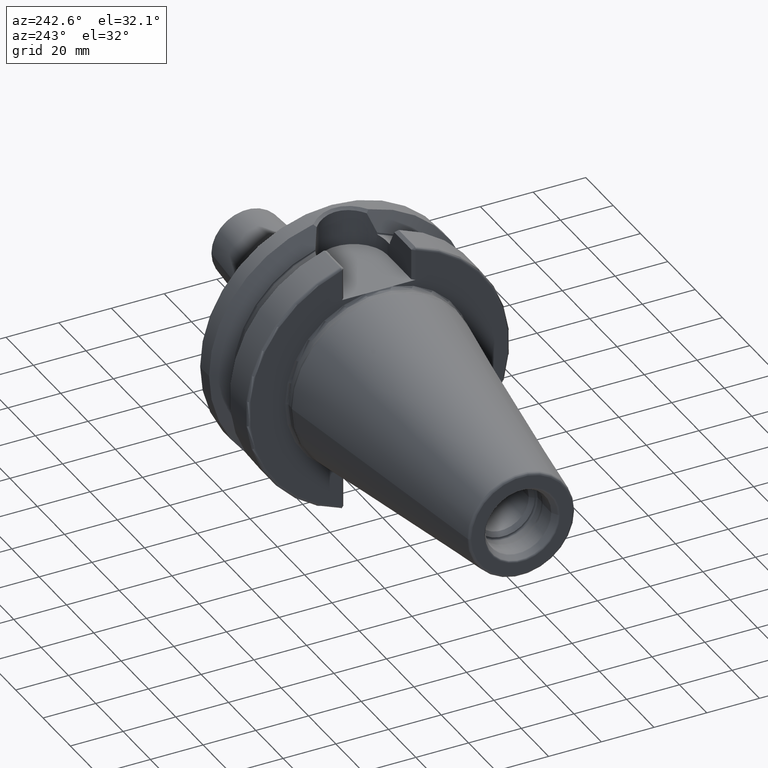
[diagram: clean part render]
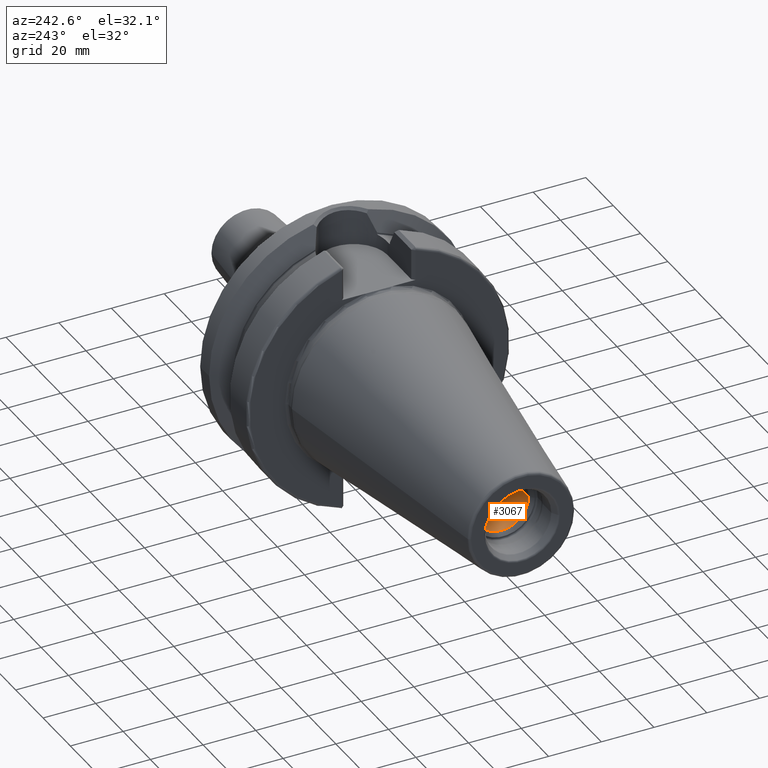
[diagram: same view with one face highlighted and labeled with its STEP entity id]
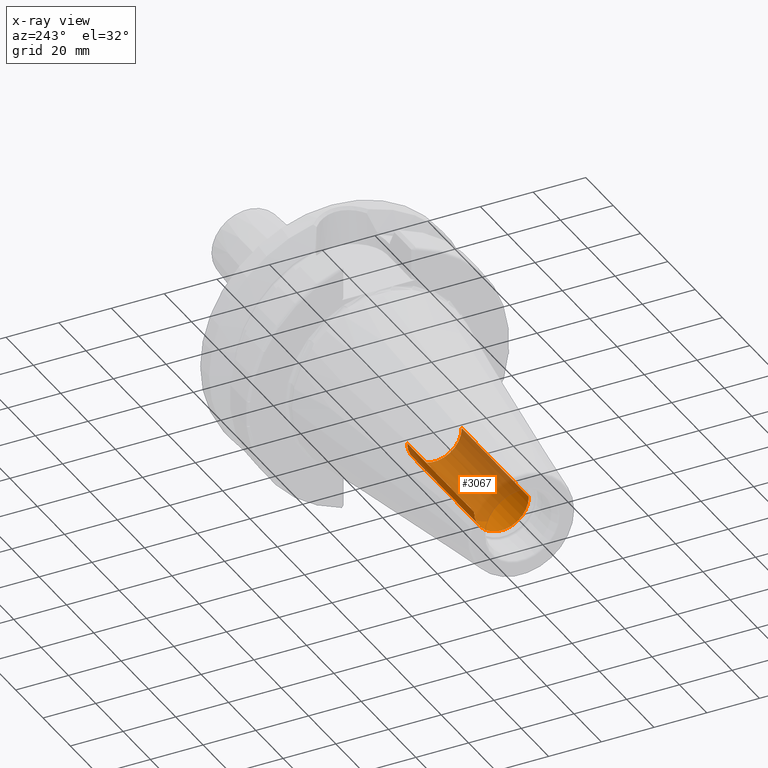
[diagram: x-ray of the same camera — body ghosted, the highlighted face saturated]
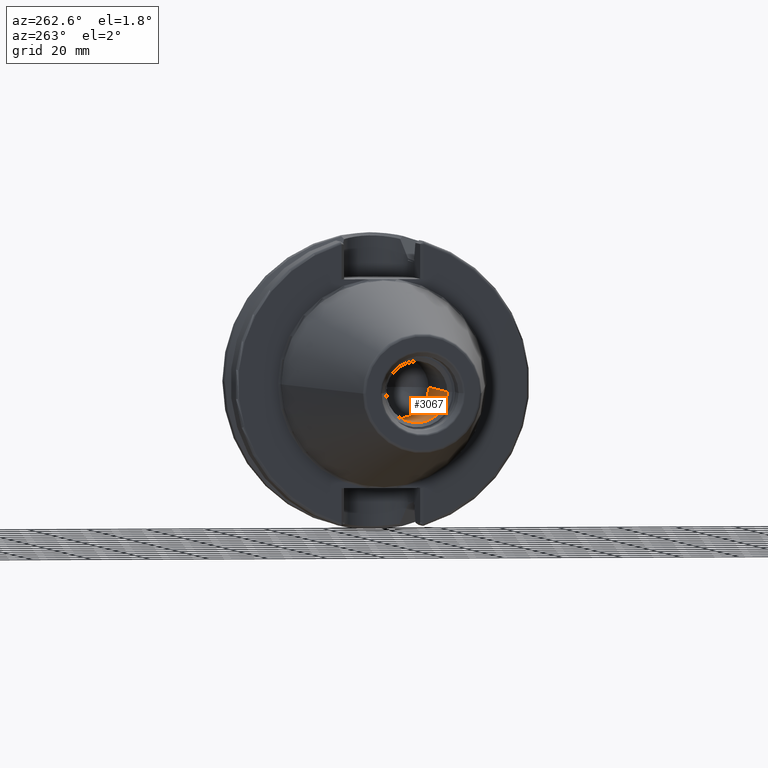
[diagram: same view with one face highlighted and labeled with its STEP entity id]
A machine part, auxiliary view. The second image highlights one B-rep face of the part: STEP entity #3067.
The next image is the same camera in x-ray: the body ghosted, the highlighted face saturated — about 72% of this face is hidden behind the body in this view.
A second angle (auxiliary view) of the same face is appended — the face is thin or edge-on in the first view.
In plain terms, the highlighted cylindrical surface (edge-blend (fillet) strip) has radius 10.375 mm, axis along (1, 0, 0).
Its self-contained STEP definition (entity closure, byte-faithful):
#1133=CARTESIAN_POINT('',(-8.685E1,0.E0,0.E0));
#1134=DIRECTION('',(-1.E0,0.E0,0.E0));
#1135=DIRECTION('',(0.E0,1.E0,0.E0));
#1136=AXIS2_PLACEMENT_3D('',#1133,#1134,#1135);
#1142=DIRECTION('',(-1.E0,0.E0,0.E0));
#1143=VECTOR('',#1142,4.905E1);
#1144=CARTESIAN_POINT('',(-3.78E1,1.0375E1,0.E0));
#1145=LINE('',#1144,#1143);
#1146=CARTESIAN_POINT('',(-3.78E1,0.E0,0.E0));
#1147=DIRECTION('',(-1.E0,0.E0,0.E0));
#1148=DIRECTION('',(0.E0,1.E0,0.E0));
#1149=AXIS2_PLACEMENT_3D('',#1146,#1147,#1148);
#1151=DIRECTION('',(-1.E0,0.E0,0.E0));
#1152=VECTOR('',#1151,4.905E1);
#1153=CARTESIAN_POINT('',(-3.78E1,-1.0375E1,0.E0));
#1154=LINE('',#1153,#1152);
#1253=CARTESIAN_POINT('',(-3.78E1,1.0375E1,0.E0));
#1255=VERTEX_POINT('',#1253);
#1256=CARTESIAN_POINT('',(-8.685E1,1.0375E1,0.E0));
#1257=VERTEX_POINT('',#1256);
#1276=CARTESIAN_POINT('',(-3.78E1,-1.0375E1,0.E0));
#1277=VERTEX_POINT('',#1276);
#1278=CARTESIAN_POINT('',(-8.685E1,-1.0375E1,0.E0));
#1279=VERTEX_POINT('',#1278);
#3053=CARTESIAN_POINT('',(-1.053116964461E2,0.E0,0.E0));
#3054=DIRECTION('',(1.E0,0.E0,0.E0));
#3055=DIRECTION('',(0.E0,-1.E0,0.E0));
#3056=AXIS2_PLACEMENT_3D('',#3053,#3054,#3055);
#3057=CYLINDRICAL_SURFACE('',#3056,1.0375E1);
#3059=ORIENTED_EDGE('',*,*,#3058,.F.);
#3061=ORIENTED_EDGE('',*,*,#3060,.T.);
#3063=ORIENTED_EDGE('',*,*,#3062,.T.);
#3064=ORIENTED_EDGE('',*,*,#3046,.F.);
#3065=EDGE_LOOP('',(#3059,#3061,#3063,#3064));
#3066=FACE_OUTER_BOUND('',#3065,.F.);
#3067=ADVANCED_FACE('',(#3066),#3057,.F.);
#1137=CIRCLE('',#1136,1.0375E1);
#1150=CIRCLE('',#1149,1.0375E1);
#3046=EDGE_CURVE('',#1257,#1279,#1137,.T.);
#3058=EDGE_CURVE('',#1255,#1257,#1145,.T.);
#3060=EDGE_CURVE('',#1255,#1277,#1150,.T.);
#3062=EDGE_CURVE('',#1277,#1279,#1154,.T.);